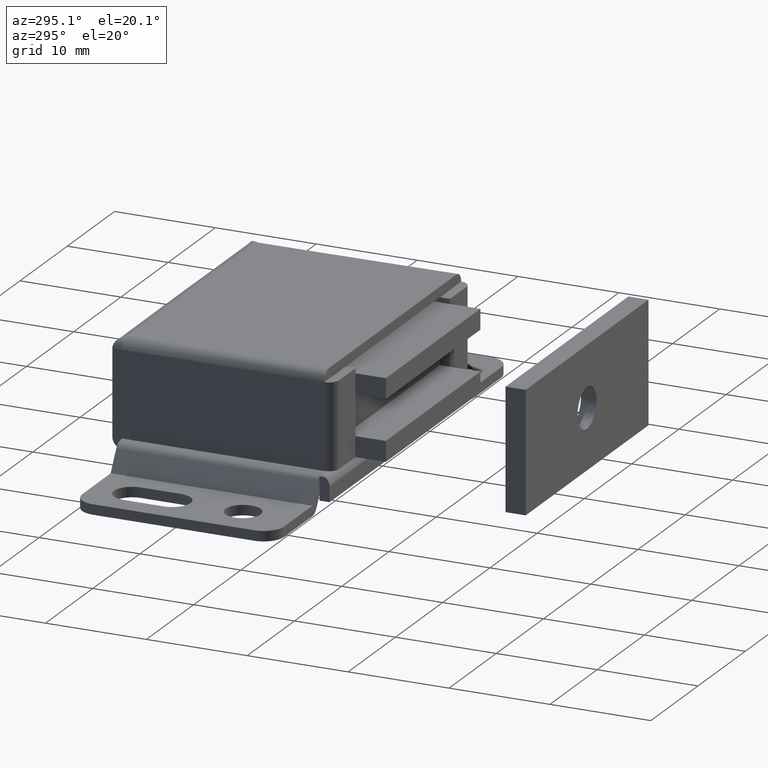
[diagram: clean part render]
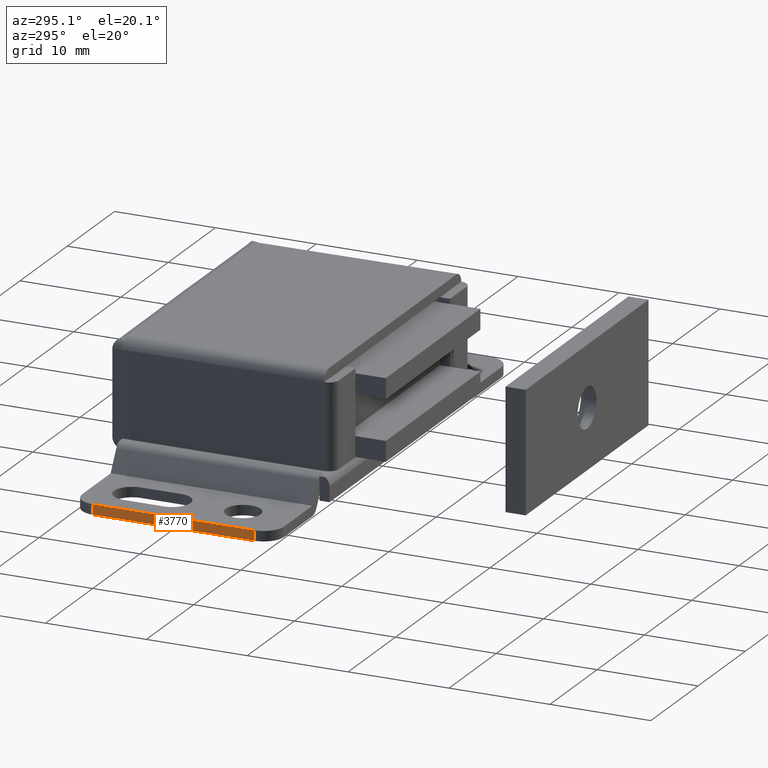
[diagram: same view with one face highlighted and labeled with its STEP entity id]
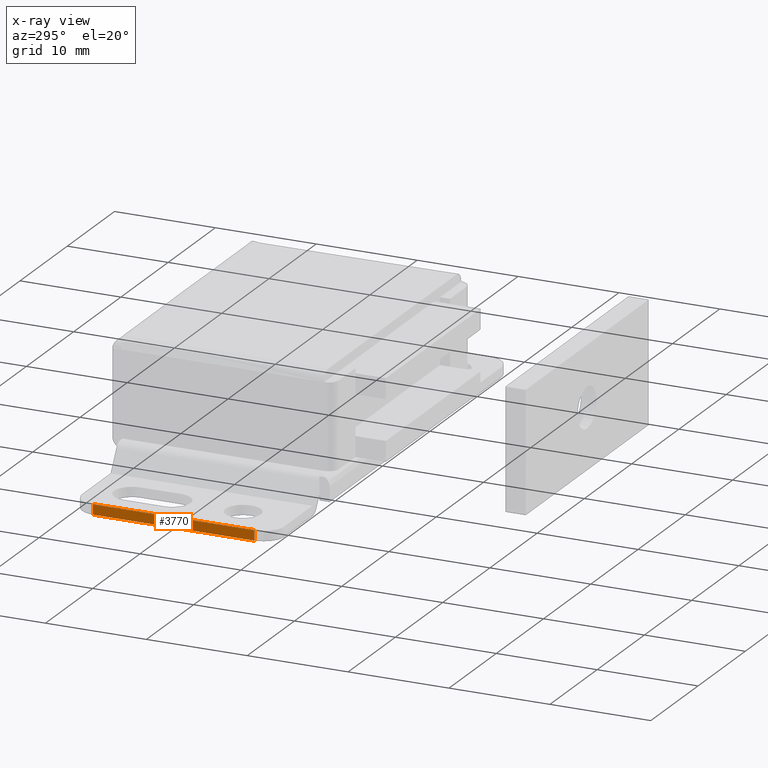
[diagram: x-ray of the same camera — body ghosted, the highlighted face saturated]
A machine part, auxiliary view. The second image highlights one B-rep face of the part: STEP entity #3770.
The next image is the same camera in x-ray: the body ghosted, the highlighted face saturated — about 0% of this face is hidden behind the body in this view.
In plain terms, the highlighted face is a freeform B-spline surface patch.
Its self-contained STEP definition (entity closure, byte-faithful):
#1542=CARTESIAN_POINT('',(-25.0,-19.0,0.999999999999943));
#1543=VERTEX_POINT('',#1542);
#1544=CARTESIAN_POINT('',(-25.0,-3.0,0.999999999999943));
#1545=VERTEX_POINT('',#1544);
#1546=CARTESIAN_POINT('',(-25.0,-19.0,0.999999999999943));
#1547=CARTESIAN_POINT('',(-25.0,-3.0,0.999999999999943));
#1548=QUASI_UNIFORM_CURVE('',1,(#1546,#1547),.UNSPECIFIED.,.F.,.U.);
#1549=EDGE_CURVE('',#1543,#1545,#1548,.T.);
#2746=CARTESIAN_POINT('',(-25.0,-3.0,-5.684342E-014));
#2747=VERTEX_POINT('',#2746);
#2763=CARTESIAN_POINT('',(-25.0,-3.0,0.999999999999943));
#2764=CARTESIAN_POINT('',(-25.0,-3.0,-5.684342E-014));
#2765=QUASI_UNIFORM_CURVE('',1,(#2763,#2764),.UNSPECIFIED.,.F.,.U.);
#2766=EDGE_CURVE('',#1545,#2747,#2765,.T.);
#2791=CARTESIAN_POINT('',(-25.0,-19.0,-5.684342E-014));
#2792=VERTEX_POINT('',#2791);
#2808=CARTESIAN_POINT('',(-25.0,-19.0,-5.684342E-014));
#2809=CARTESIAN_POINT('',(-25.0,-19.0,0.999999999999943));
#2810=QUASI_UNIFORM_CURVE('',1,(#2808,#2809),.UNSPECIFIED.,.F.,.U.);
#2811=EDGE_CURVE('',#2792,#1543,#2810,.T.);
#3755=CARTESIAN_POINT('',(-25.0,-19.799199968988901,-0.049949998061863));
#3756=CARTESIAN_POINT('',(-25.0,-19.799199968988901,1.049950024883839));
#3757=CARTESIAN_POINT('',(-25.0,-2.200799601857663,-0.049949998061863));
#3758=CARTESIAN_POINT('',(-25.0,-2.200799601857663,1.049950024883839));
#3759=B_SPLINE_SURFACE_WITH_KNOTS('',1,1,((#3755,#3757),(#3756,#3758)),.UNSPECIFIED.,.F.,.F.,.U.,(2,2),(2,2),(0.041708334948495,0.958291687403247),(0.0,17.598400367131230),.UNSPECIFIED.);
#3760=CARTESIAN_POINT('',(-25.0,-19.0,-5.684342E-014));
#3761=CARTESIAN_POINT('',(-25.0,-3.0,-5.684342E-014));
#3762=QUASI_UNIFORM_CURVE('',1,(#3760,#3761),.UNSPECIFIED.,.F.,.U.);
#3763=EDGE_CURVE('',#2792,#2747,#3762,.T.);
#3764=ORIENTED_EDGE('',*,*,#3763,.F.);
#3765=ORIENTED_EDGE('',*,*,#2811,.T.);
#3766=ORIENTED_EDGE('',*,*,#1549,.T.);
#3767=ORIENTED_EDGE('',*,*,#2766,.T.);
#3768=EDGE_LOOP('',(#3764,#3765,#3766,#3767));
#3769=FACE_OUTER_BOUND('',#3768,.T.);
#3770=ADVANCED_FACE('',(#3769),#3759,.T.);